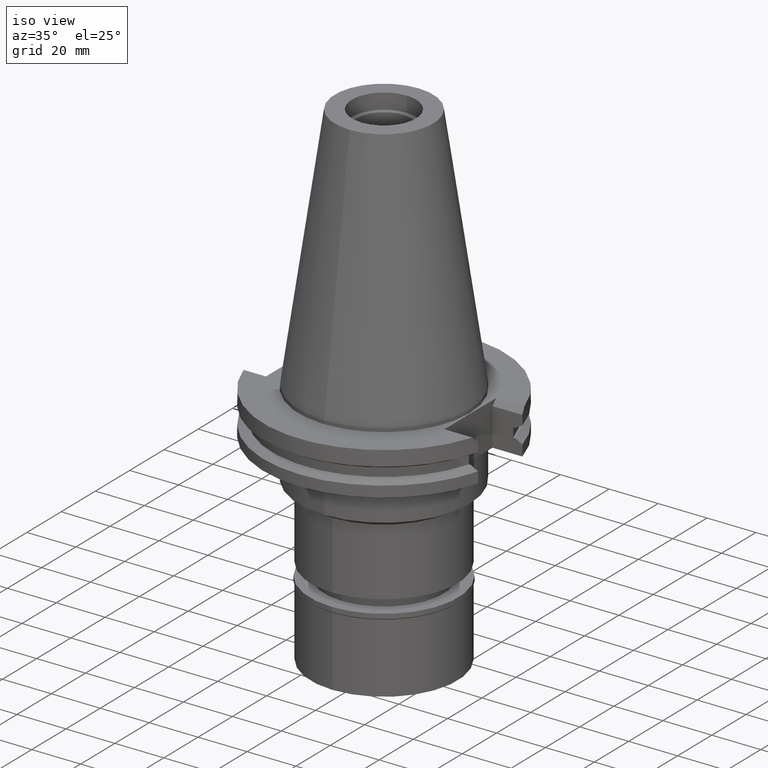
[diagram: clean part render]
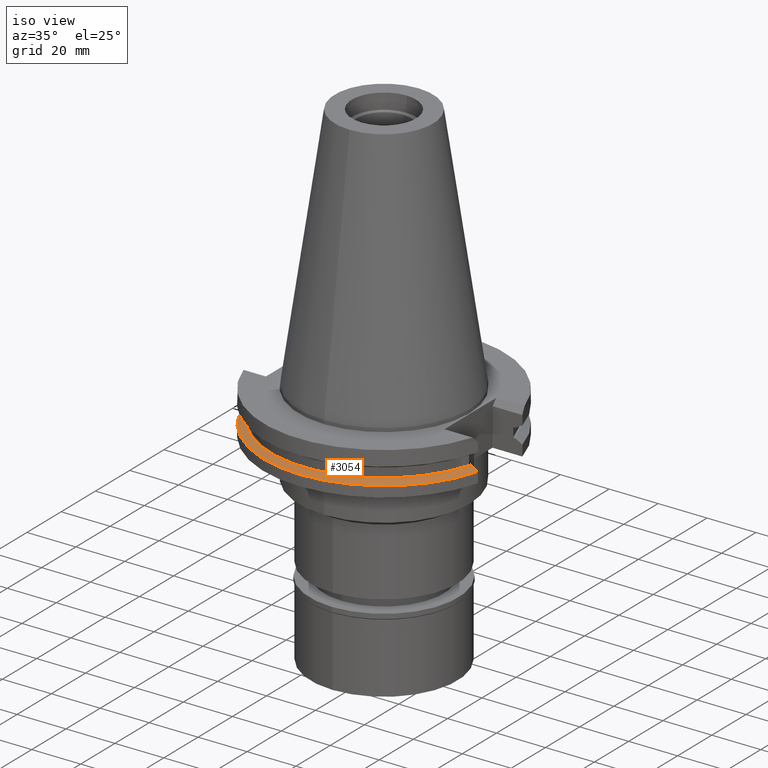
[diagram: same view with one face highlighted and labeled with its STEP entity id]
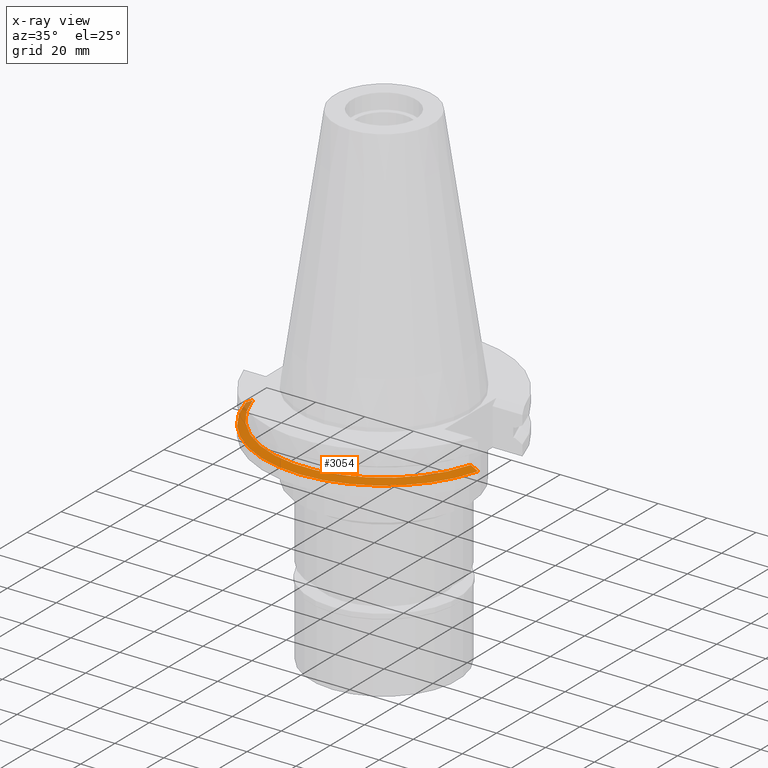
[diagram: x-ray of the same camera — body ghosted, the highlighted face saturated]
A machine part, iso view. The second image highlights one B-rep face of the part: STEP entity #3054.
The next image is the same camera in x-ray: the body ghosted, the highlighted face saturated — about 2% of this face is hidden behind the body in this view.
In plain terms, the highlighted conical surface has half-angle 60 deg.
Its self-contained STEP definition (entity closure, byte-faithful):
#94 = CARTESIAN_POINT ( 'NONE',  ( 47.47671146204000081, -12.95500000000000007, -14.65366676908000088 ) ) ;
#339 = CARTESIAN_POINT ( 'NONE',  ( 44.58657636813000380, -12.95500000000000007, -13.04749999999999943 ) ) ;
#518 = CARTESIAN_POINT ( 'NONE',  ( 0.0000000000000000000, 1.055026073064999954E-14, -14.65366676908000088 ) ) ;
#543 = B_SPLINE_CURVE_WITH_KNOTS ( 'NONE', 3,
 ( #3191, #2477, #2234, #976 ),
 .UNSPECIFIED., .F., .F.,
 ( 4, 4 ),
 ( 0.0000000000000000000, 1.000000000000000000 ),
 .UNSPECIFIED. ) ;
#561 = CARTESIAN_POINT ( 'NONE',  ( -44.58657636813000380, -12.95500000000000007, -13.04749999999999943 ) ) ;
#582 = CARTESIAN_POINT ( 'NONE',  ( 45.52193301630200040, -12.95500000000000007, -13.56608150540035851 ) ) ;
#620 = CARTESIAN_POINT ( 'NONE',  ( 0.0000000000000000000, 1.055026073064999954E-14, -13.85058338454000015 ) ) ;
#663 = EDGE_CURVE ( 'NONE', #1427, #1438, #874, .T. ) ;
#688 = AXIS2_PLACEMENT_3D ( 'NONE', #620, #1850, #1634 ) ;
#696 = AXIS2_PLACEMENT_3D ( 'NONE', #518, #2527, #2993 ) ;
#874 = B_SPLINE_CURVE_WITH_KNOTS ( 'NONE', 3,
 ( #339, #582, #1320, #2042 ),
 .UNSPECIFIED., .F., .F.,
 ( 4, 4 ),
 ( 0.0000000000000000000, 1.000000000000000000 ),
 .UNSPECIFIED. ) ;
#976 = CARTESIAN_POINT ( 'NONE',  ( -44.58657636813000380, -12.95500000000000007, -13.04749999999999943 ) ) ;
#986 = EDGE_CURVE ( 'NONE', #1427, #1255, #2984, .T. ) ;
#1101 = CARTESIAN_POINT ( 'NONE',  ( 44.58657636813000380, -12.95500000000000007, -13.04749999999999943 ) ) ;
#1255 = VERTEX_POINT ( 'NONE', #561 ) ;
#1320 = CARTESIAN_POINT ( 'NONE',  ( 46.48531138093866844, -12.95500000000000007, -14.10147042842702625 ) ) ;
#1427 = VERTEX_POINT ( 'NONE', #1101 ) ;
#1438 = VERTEX_POINT ( 'NONE', #94 ) ;
#1547 = EDGE_LOOP ( 'NONE', ( #2886, #1709, #2444, #2815 ) ) ;
#1634 = DIRECTION ( 'NONE',  ( 0.0000000000000000000, -1.000000000000000000, 0.0000000000000000000 ) ) ;
#1681 = AXIS2_PLACEMENT_3D ( 'NONE', #2401, #2180, #2670 ) ;
#1709 = ORIENTED_EDGE ( 'NONE', *, *, #986, .T. ) ;
#1850 = DIRECTION ( 'NONE',  ( 0.0000000000000000000, 0.0000000000000000000, -1.000000000000000000 ) ) ;
#1947 = CARTESIAN_POINT ( 'NONE',  ( -47.47671146204000081, -12.95500000000000007, -14.65366676908000088 ) ) ;
#2042 = CARTESIAN_POINT ( 'NONE',  ( 47.47671146204000081, -12.95500000000000007, -14.65366676908000088 ) ) ;
#2180 = DIRECTION ( 'NONE',  ( 0.0000000000000000000, 0.0000000000000000000, -1.000000000000000000 ) ) ;
#2234 = CARTESIAN_POINT ( 'NONE',  ( -45.52193300959797995, -12.95500000000000007, -13.56608150168350591 ) ) ;
#2307 = EDGE_CURVE ( 'NONE', #1438, #2641, #2350, .T. ) ;
#2350 = CIRCLE ( 'NONE', #696, 49.21250000000001279 ) ;
#2401 = CARTESIAN_POINT ( 'NONE',  ( 0.0000000000000000000, 1.055026073064999954E-14, -13.04749999999999943 ) ) ;
#2444 = ORIENTED_EDGE ( 'NONE', *, *, #2640, .F. ) ;
#2477 = CARTESIAN_POINT ( 'NONE',  ( -46.48531137423464799, -12.95500000000000007, -14.10147042471017365 ) ) ;
#2527 = DIRECTION ( 'NONE',  ( 0.0000000000000000000, 0.0000000000000000000, -1.000000000000000000 ) ) ;
#2640 = EDGE_CURVE ( 'NONE', #2641, #1255, #543, .T. ) ;
#2641 = VERTEX_POINT ( 'NONE', #1947 ) ;
#2670 = DIRECTION ( 'NONE',  ( 0.0000000000000000000, -1.000000000000000000, 0.0000000000000000000 ) ) ;
#2815 = ORIENTED_EDGE ( 'NONE', *, *, #2307, .F. ) ;
#2886 = ORIENTED_EDGE ( 'NONE', *, *, #663, .F. ) ;
#2964 = CONICAL_SURFACE ( 'NONE', #688, 47.82151877527000039, 1.047197551196400456 ) ;
#2984 = CIRCLE ( 'NONE', #1681, 46.43053755052999776 ) ;
#2993 = DIRECTION ( 'NONE',  ( 0.9647287063660957562, -0.2632461264922989486, 0.0000000000000000000 ) ) ;
#3054 = ADVANCED_FACE ( 'NONE', ( #3103 ), #2964, .T. ) ;
#3103 = FACE_OUTER_BOUND ( 'NONE', #1547, .T. ) ;
#3191 = CARTESIAN_POINT ( 'NONE',  ( -47.47671146204000081, -12.95500000000000007, -14.65366676908000088 ) ) ;